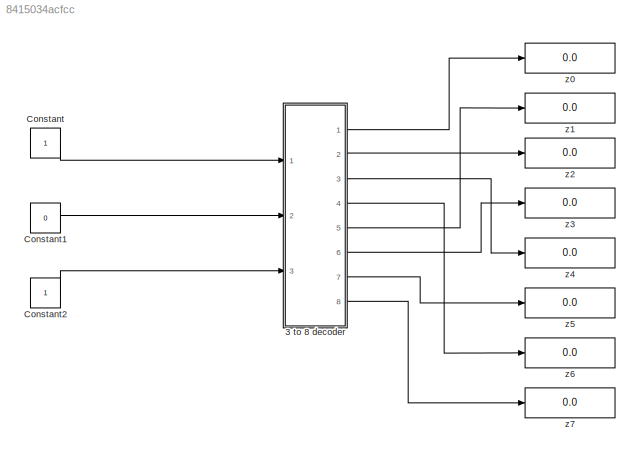
MODEL slx_8415034acfcc
KIND model
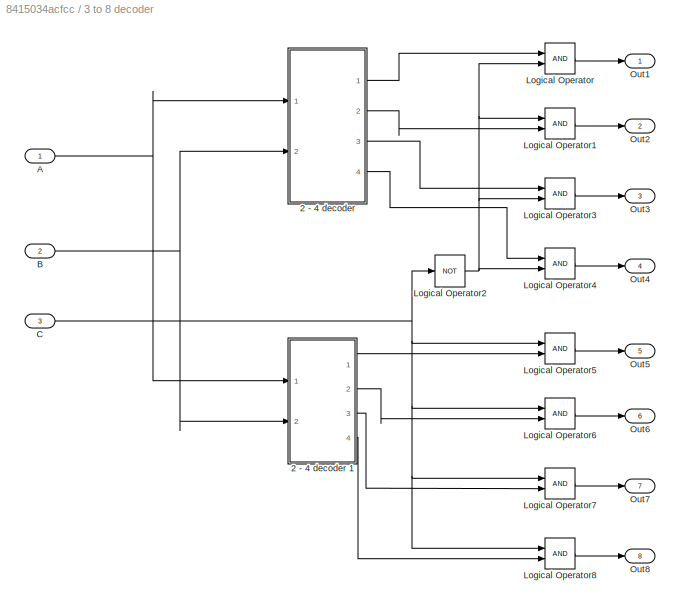
BLOCK [SubSystem] 3  to 8 decoder 
  Ports = [3, 8]
  RequestExecContextInheritance = off
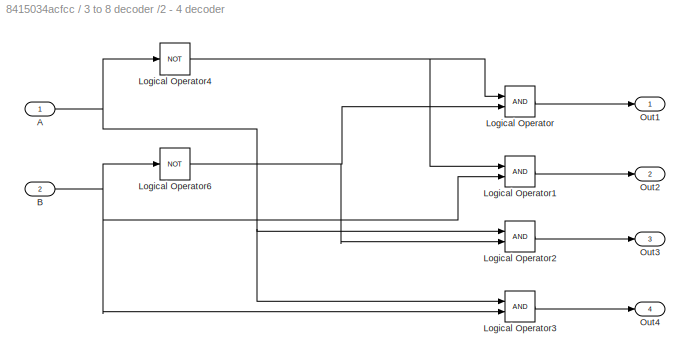
BLOCK [SubSystem] 3  to 8 decoder /2 - 4 decoder 
  Ports = [2, 4]
  RequestExecContextInheritance = off
BLOCK [Inport] 3  to 8 decoder /2 - 4 decoder /A
  IconDisplay = Port number
BLOCK [Inport] 3  to 8 decoder /2 - 4 decoder /B
  IconDisplay = Port number
  Port = 2
BLOCK [Logic] 3  to 8 decoder /2 - 4 decoder /Logical Operator
  AllPortsSameDT = off
  OutDataTypeStr = boolean
  Ports = [2, 1]
BLOCK [Logic] 3  to 8 decoder /2 - 4 decoder /Logical Operator1
  AllPortsSameDT = off
  OutDataTypeStr = boolean
  Ports = [2, 1]
BLOCK [Logic] 3  to 8 decoder /2 - 4 decoder /Logical Operator2
  AllPortsSameDT = off
  OutDataTypeStr = boolean
  Ports = [2, 1]
BLOCK [Logic] 3  to 8 decoder /2 - 4 decoder /Logical Operator3
  AllPortsSameDT = off
  OutDataTypeStr = boolean
  Ports = [2, 1]
BLOCK [Logic] 3  to 8 decoder /2 - 4 decoder /Logical Operator4
  AllPortsSameDT = off
  Operator = NOT
  OutDataTypeStr = boolean
  Ports = [1, 1]
BLOCK [Logic] 3  to 8 decoder /2 - 4 decoder /Logical Operator6
  AllPortsSameDT = off
  Operator = NOT
  OutDataTypeStr = boolean
  Ports = [1, 1]
BLOCK [Outport] 3  to 8 decoder /2 - 4 decoder /Out1
  IconDisplay = Port number
BLOCK [Outport] 3  to 8 decoder /2 - 4 decoder /Out2
  IconDisplay = Port number
  Port = 2
BLOCK [Outport] 3  to 8 decoder /2 - 4 decoder /Out3
  IconDisplay = Port number
  Port = 3
BLOCK [Outport] 3  to 8 decoder /2 - 4 decoder /Out4
  IconDisplay = Port number
  Port = 4
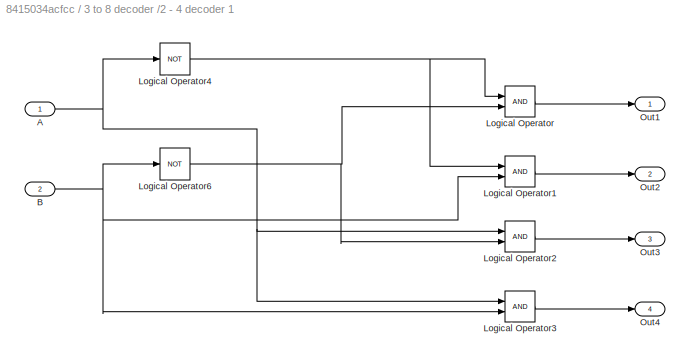
BLOCK [SubSystem] 3  to 8 decoder /2 - 4 decoder 1
  Ports = [2, 4]
  RequestExecContextInheritance = off
BLOCK [Inport] 3  to 8 decoder /2 - 4 decoder 1/A
  IconDisplay = Port number
BLOCK [Inport] 3  to 8 decoder /2 - 4 decoder 1/B
  IconDisplay = Port number
  Port = 2
BLOCK [Logic] 3  to 8 decoder /2 - 4 decoder 1/Logical Operator
  AllPortsSameDT = off
  OutDataTypeStr = boolean
  Ports = [2, 1]
BLOCK [Logic] 3  to 8 decoder /2 - 4 decoder 1/Logical Operator1
  AllPortsSameDT = off
  OutDataTypeStr = boolean
  Ports = [2, 1]
BLOCK [Logic] 3  to 8 decoder /2 - 4 decoder 1/Logical Operator2
  AllPortsSameDT = off
  OutDataTypeStr = boolean
  Ports = [2, 1]
BLOCK [Logic] 3  to 8 decoder /2 - 4 decoder 1/Logical Operator3
  AllPortsSameDT = off
  OutDataTypeStr = boolean
  Ports = [2, 1]
BLOCK [Logic] 3  to 8 decoder /2 - 4 decoder 1/Logical Operator4
  AllPortsSameDT = off
  Operator = NOT
  OutDataTypeStr = boolean
  Ports = [1, 1]
BLOCK [Logic] 3  to 8 decoder /2 - 4 decoder 1/Logical Operator6
  AllPortsSameDT = off
  Operator = NOT
  OutDataTypeStr = boolean
  Ports = [1, 1]
BLOCK [Outport] 3  to 8 decoder /2 - 4 decoder 1/Out1
  IconDisplay = Port number
BLOCK [Outport] 3  to 8 decoder /2 - 4 decoder 1/Out2
  IconDisplay = Port number
  Port = 2
BLOCK [Outport] 3  to 8 decoder /2 - 4 decoder 1/Out3
  IconDisplay = Port number
  Port = 3
BLOCK [Outport] 3  to 8 decoder /2 - 4 decoder 1/Out4
  IconDisplay = Port number
  Port = 4
BLOCK [Inport] 3  to 8 decoder /A
  IconDisplay = Port number
  OutDataTypeStr = boolean
  SampleTime = 1
BLOCK [Inport] 3  to 8 decoder /B
  IconDisplay = Port number
  OutDataTypeStr = boolean
  Port = 2
  SampleTime = 1
BLOCK [Inport] 3  to 8 decoder /C
  IconDisplay = Port number
  OutDataTypeStr = boolean
  Port = 3
  SampleTime = 1
BLOCK [Logic] 3  to 8 decoder /Logical Operator
  AllPortsSameDT = off
  OutDataTypeStr = boolean
  Ports = [2, 1]
BLOCK [Logic] 3  to 8 decoder /Logical Operator1
  AllPortsSameDT = off
  OutDataTypeStr = boolean
  Ports = [2, 1]
BLOCK [Logic] 3  to 8 decoder /Logical Operator2
  AllPortsSameDT = off
  Operator = NOT
  OutDataTypeStr = boolean
  Ports = [1, 1]
BLOCK [Logic] 3  to 8 decoder /Logical Operator3
  AllPortsSameDT = off
  OutDataTypeStr = boolean
  Ports = [2, 1]
BLOCK [Logic] 3  to 8 decoder /Logical Operator4
  AllPortsSameDT = off
  OutDataTypeStr = boolean
  Ports = [2, 1]
BLOCK [Logic] 3  to 8 decoder /Logical Operator5
  AllPortsSameDT = off
  OutDataTypeStr = boolean
  Ports = [2, 1]
BLOCK [Logic] 3  to 8 decoder /Logical Operator6
  AllPortsSameDT = off
  OutDataTypeStr = boolean
  Ports = [2, 1]
BLOCK [Logic] 3  to 8 decoder /Logical Operator7
  AllPortsSameDT = off
  OutDataTypeStr = boolean
  Ports = [2, 1]
BLOCK [Logic] 3  to 8 decoder /Logical Operator8
  AllPortsSameDT = off
  OutDataTypeStr = boolean
  Ports = [2, 1]
BLOCK [Outport] 3  to 8 decoder /Out1
  IconDisplay = Port number
BLOCK [Outport] 3  to 8 decoder /Out2
  IconDisplay = Port number
  Port = 2
BLOCK [Outport] 3  to 8 decoder /Out3
  IconDisplay = Port number
  Port = 3
BLOCK [Outport] 3  to 8 decoder /Out4
  IconDisplay = Port number
  Port = 4
BLOCK [Outport] 3  to 8 decoder /Out5
  IconDisplay = Port number
  Port = 5
BLOCK [Outport] 3  to 8 decoder /Out6
  IconDisplay = Port number
  Port = 6
BLOCK [Outport] 3  to 8 decoder /Out7
  IconDisplay = Port number
  Port = 7
BLOCK [Outport] 3  to 8 decoder /Out8
  IconDisplay = Port number
  Port = 8
BLOCK [Constant] Constant
  OutDataTypeStr = boolean
BLOCK [Constant] Constant1
  OutDataTypeStr = boolean
  Value = 0
BLOCK [Constant] Constant2
  OutDataTypeStr = boolean
BLOCK [Display] z0
  Decimation = 1
  Ports = [1]
BLOCK [Display] z1
  Decimation = 1
  Ports = [1]
BLOCK [Display] z2
  Decimation = 1
  Ports = [1]
BLOCK [Display] z3
  Decimation = 1
  Ports = [1]
BLOCK [Display] z4
  Decimation = 1
  Ports = [1]
BLOCK [Display] z5
  Decimation = 1
  Ports = [1]
BLOCK [Display] z6
  Decimation = 1
  Ports = [1]
BLOCK [Display] z7
  Decimation = 1
  Ports = [1]
NET 3  to 8 decoder /2 - 4 decoder /A:1 -> 3  to 8 decoder /2 - 4 decoder /Logical Operator2:1, 3  to 8 decoder /2 - 4 decoder /Logical Operator3:1, 3  to 8 decoder /2 - 4 decoder /Logical Operator4:1
NET 3  to 8 decoder /2 - 4 decoder /B:1 -> 3  to 8 decoder /2 - 4 decoder /Logical Operator1:2, 3  to 8 decoder /2 - 4 decoder /Logical Operator3:2, 3  to 8 decoder /2 - 4 decoder /Logical Operator6:1
LINE 3  to 8 decoder /2 - 4 decoder /Logical Operator1:1 -> 3  to 8 decoder /2 - 4 decoder /Out2:1
LINE 3  to 8 decoder /2 - 4 decoder /Logical Operator2:1 -> 3  to 8 decoder /2 - 4 decoder /Out3:1
LINE 3  to 8 decoder /2 - 4 decoder /Logical Operator3:1 -> 3  to 8 decoder /2 - 4 decoder /Out4:1
NET 3  to 8 decoder /2 - 4 decoder /Logical Operator4:1 -> 3  to 8 decoder /2 - 4 decoder /Logical Operator1:1, 3  to 8 decoder /2 - 4 decoder /Logical Operator:1
NET 3  to 8 decoder /2 - 4 decoder /Logical Operator6:1 -> 3  to 8 decoder /2 - 4 decoder /Logical Operator2:2, 3  to 8 decoder /2 - 4 decoder /Logical Operator:2
LINE 3  to 8 decoder /2 - 4 decoder /Logical Operator:1 -> 3  to 8 decoder /2 - 4 decoder /Out1:1
NET 3  to 8 decoder /2 - 4 decoder 1/A:1 -> 3  to 8 decoder /2 - 4 decoder 1/Logical Operator2:1, 3  to 8 decoder /2 - 4 decoder 1/Logical Operator3:1, 3  to 8 decoder /2 - 4 decoder 1/Logical Operator4:1
NET 3  to 8 decoder /2 - 4 decoder 1/B:1 -> 3  to 8 decoder /2 - 4 decoder 1/Logical Operator1:2, 3  to 8 decoder /2 - 4 decoder 1/Logical Operator3:2, 3  to 8 decoder /2 - 4 decoder 1/Logical Operator6:1
LINE 3  to 8 decoder /2 - 4 decoder 1/Logical Operator1:1 -> 3  to 8 decoder /2 - 4 decoder 1/Out2:1
LINE 3  to 8 decoder /2 - 4 decoder 1/Logical Operator2:1 -> 3  to 8 decoder /2 - 4 decoder 1/Out3:1
LINE 3  to 8 decoder /2 - 4 decoder 1/Logical Operator3:1 -> 3  to 8 decoder /2 - 4 decoder 1/Out4:1
NET 3  to 8 decoder /2 - 4 decoder 1/Logical Operator4:1 -> 3  to 8 decoder /2 - 4 decoder 1/Logical Operator1:1, 3  to 8 decoder /2 - 4 decoder 1/Logical Operator:1
NET 3  to 8 decoder /2 - 4 decoder 1/Logical Operator6:1 -> 3  to 8 decoder /2 - 4 decoder 1/Logical Operator2:2, 3  to 8 decoder /2 - 4 decoder 1/Logical Operator:2
LINE 3  to 8 decoder /2 - 4 decoder 1/Logical Operator:1 -> 3  to 8 decoder /2 - 4 decoder 1/Out1:1
LINE 3  to 8 decoder /2 - 4 decoder 1:1 -> 3  to 8 decoder /Logical Operator5:2
LINE 3  to 8 decoder /2 - 4 decoder 1:2 -> 3  to 8 decoder /Logical Operator6:2
LINE 3  to 8 decoder /2 - 4 decoder 1:3 -> 3  to 8 decoder /Logical Operator7:2
LINE 3  to 8 decoder /2 - 4 decoder 1:4 -> 3  to 8 decoder /Logical Operator8:2
LINE 3  to 8 decoder /2 - 4 decoder :1 -> 3  to 8 decoder /Logical Operator:1
LINE 3  to 8 decoder /2 - 4 decoder :2 -> 3  to 8 decoder /Logical Operator1:2
LINE 3  to 8 decoder /2 - 4 decoder :3 -> 3  to 8 decoder /Logical Operator3:1
LINE 3  to 8 decoder /2 - 4 decoder :4 -> 3  to 8 decoder /Logical Operator4:1
NET 3  to 8 decoder /A:1 -> 3  to 8 decoder /2 - 4 decoder 1:1, 3  to 8 decoder /2 - 4 decoder :1
NET 3  to 8 decoder /B:1 -> 3  to 8 decoder /2 - 4 decoder 1:2, 3  to 8 decoder /2 - 4 decoder :2
NET 3  to 8 decoder /C:1 -> 3  to 8 decoder /Logical Operator2:1, 3  to 8 decoder /Logical Operator5:1, 3  to 8 decoder /Logical Operator6:1, 3  to 8 decoder /Logical Operator7:1, 3  to 8 decoder /Logical Operator8:1
LINE 3  to 8 decoder /Logical Operator1:1 -> 3  to 8 decoder /Out2:1
NET 3  to 8 decoder /Logical Operator2:1 -> 3  to 8 decoder /Logical Operator1:1, 3  to 8 decoder /Logical Operator3:2, 3  to 8 decoder /Logical Operator4:2, 3  to 8 decoder /Logical Operator:2
LINE 3  to 8 decoder /Logical Operator3:1 -> 3  to 8 decoder /Out3:1
LINE 3  to 8 decoder /Logical Operator4:1 -> 3  to 8 decoder /Out4:1
LINE 3  to 8 decoder /Logical Operator5:1 -> 3  to 8 decoder /Out5:1
LINE 3  to 8 decoder /Logical Operator6:1 -> 3  to 8 decoder /Out6:1
LINE 3  to 8 decoder /Logical Operator7:1 -> 3  to 8 decoder /Out7:1
LINE 3  to 8 decoder /Logical Operator8:1 -> 3  to 8 decoder /Out8:1
LINE 3  to 8 decoder /Logical Operator:1 -> 3  to 8 decoder /Out1:1
LINE 3  to 8 decoder :1 -> z0:1
LINE 3  to 8 decoder :2 -> z2:1
LINE 3  to 8 decoder :3 -> z4:1
LINE 3  to 8 decoder :4 -> z6:1
LINE 3  to 8 decoder :5 -> z1:1
LINE 3  to 8 decoder :6 -> z3:1
LINE 3  to 8 decoder :7 -> z5:1
LINE 3  to 8 decoder :8 -> z7:1
LINE Constant1:1 -> 3  to 8 decoder :2
LINE Constant2:1 -> 3  to 8 decoder :3
LINE Constant:1 -> 3  to 8 decoder :1
note: NET lines group one-source signal fan-out (src -> all destinations, sorted); 1:1 wires keep LINE
